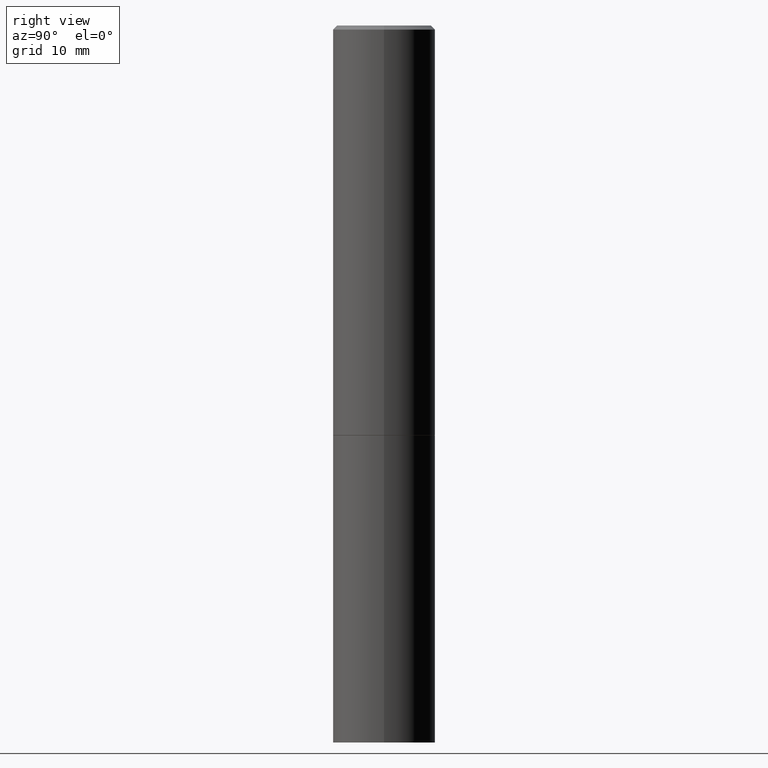
[diagram: clean part render]
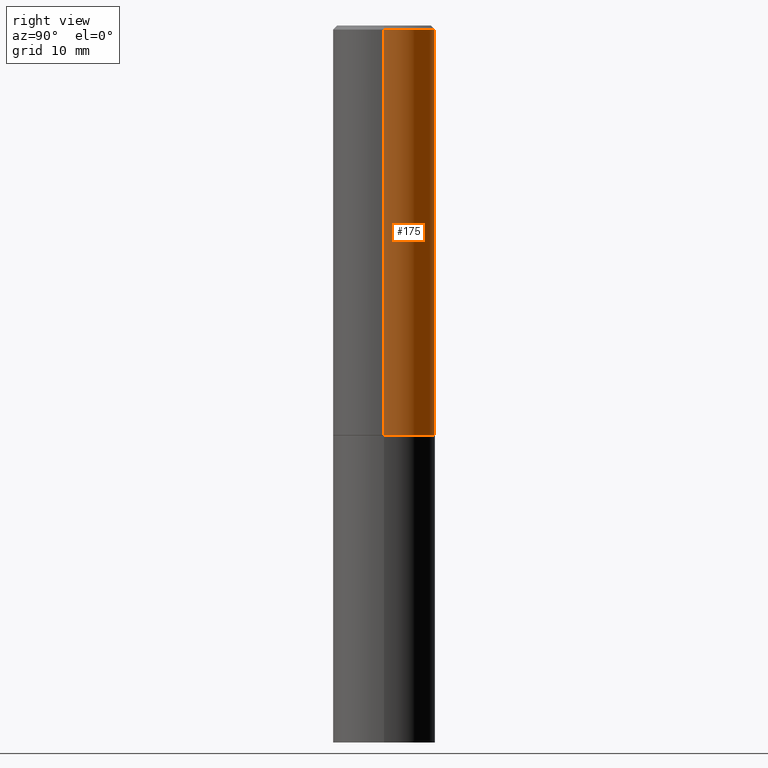
[diagram: same view with one face highlighted and labeled with its STEP entity id]
A machine part, right view. The second image highlights one B-rep face of the part: STEP entity #175.
In plain terms, the highlighted cylindrical surface (partial cylindrical patch) has radius 6.35 mm, axis along (-0, 0, 1).
Its self-contained STEP definition (entity closure, byte-faithful):
#2 = AXIS2_PLACEMENT_3D ( 'NONE', #123, #240, #359 ) ;
#12 = CARTESIAN_POINT ( 'NONE',  ( -0.2500000000000000000, -1.748293572161903489E-15, -1.998999999999999888 ) ) ;
#41 = CARTESIAN_POINT ( 'NONE',  ( 0.000000000000000000, 0.000000000000000000, 0.000000000000000000 ) ) ;
#45 = AXIS2_PLACEMENT_3D ( 'NONE', #41, #92, #155 ) ;
#57 = VERTEX_POINT ( 'NONE', #313 ) ;
#69 = VERTEX_POINT ( 'NONE', #152 ) ;
#74 = FACE_OUTER_BOUND ( 'NONE', #261, .T. ) ;
#76 = DIRECTION ( 'NONE',  ( -2.445468806185136877E-29, 3.491481338843145188E-15, 1.000000000000000000 ) ) ;
#84 = EDGE_CURVE ( 'NONE', #57, #146, #257, .T. ) ;
#92 = DIRECTION ( 'NONE',  ( -2.445468806185136597E-29, 3.491481338843145583E-15, 1.000000000000000000 ) ) ;
#105 = CARTESIAN_POINT ( 'NONE',  ( 0.2499999999999998890, -1.745740669421565889E-15, 1.219044193948983388E-29 ) ) ;
#114 = LINE ( 'NONE', #340, #292 ) ;
#117 = ORIENTED_EDGE ( 'NONE', *, *, #136, .T. ) ;
#123 = CARTESIAN_POINT ( 'NONE',  ( 4.888492143564087591E-29, -6.979471196347447369E-15, -1.998999999999999888 ) ) ;
#126 = VECTOR ( 'NONE', #193, 39.37007874015748143 ) ;
#132 = CIRCLE ( 'NONE', #2, 0.2500000000000000000 ) ;
#136 = EDGE_CURVE ( 'NONE', #69, #286, #132, .T. ) ;
#139 = ORIENTED_EDGE ( 'NONE', *, *, #321, .T. ) ;
#145 = ORIENTED_EDGE ( 'NONE', *, *, #84, .F. ) ;
#146 = VERTEX_POINT ( 'NONE', #295 ) ;
#152 = CARTESIAN_POINT ( 'NONE',  ( 0.2500000000000000000, -8.725211865769014047E-15, -1.998999999999999888 ) ) ;
#155 = DIRECTION ( 'NONE',  ( 1.000000000000000000, -6.982962677686266711E-15, 4.876176775795935793E-29 ) ) ;
#175 = ADVANCED_FACE ( 'NONE', ( #74 ), #329, .T. ) ;
#193 = DIRECTION ( 'NONE',  ( -2.445468806185136877E-29, 3.491481338843145188E-15, 1.000000000000000000 ) ) ;
#237 = DIRECTION ( 'NONE',  ( 1.000000000000000000, -6.982962677686266711E-15, 0.000000000000000000 ) ) ;
#240 = DIRECTION ( 'NONE',  ( -2.445468806185136597E-29, 3.491481338843145583E-15, 1.000000000000000000 ) ) ;
#255 = DIRECTION ( 'NONE',  ( -2.445468806185136597E-29, 3.491481338843145583E-15, 1.000000000000000000 ) ) ;
#257 = CIRCLE ( 'NONE', #308, 0.2499999999999998057 ) ;
#261 = EDGE_LOOP ( 'NONE', ( #117, #139, #145, #268 ) ) ;
#267 = CARTESIAN_POINT ( 'NONE',  ( 4.890937612370287172E-31, -6.982962677686310098E-17, -0.02000000000000005593 ) ) ;
#268 = ORIENTED_EDGE ( 'NONE', *, *, #357, .F. ) ;
#286 = VERTEX_POINT ( 'NONE', #12 ) ;
#292 = VECTOR ( 'NONE', #76, 39.37007874015748143 ) ;
#295 = CARTESIAN_POINT ( 'NONE',  ( -0.2499999999999998057, 1.675911042644702196E-15, -0.02000000000000005593 ) ) ;
#308 = AXIS2_PLACEMENT_3D ( 'NONE', #267, #255, #237 ) ;
#313 = CARTESIAN_POINT ( 'NONE',  ( 0.2499999999999998057, -1.784954126219744611E-15, -0.02000000000000005593 ) ) ;
#321 = EDGE_CURVE ( 'NONE', #286, #146, #114, .T. ) ;
#329 = CYLINDRICAL_SURFACE ( 'NONE', #45, 0.2499999999999998890 ) ;
#340 = CARTESIAN_POINT ( 'NONE',  ( -0.2499999999999998890, 1.776356839400249676E-15, -1.229733772563726025E-29 ) ) ;
#357 = EDGE_CURVE ( 'NONE', #69, #57, #363, .T. ) ;
#359 = DIRECTION ( 'NONE',  ( 1.000000000000000000, -6.982962677686266711E-15, 0.000000000000000000 ) ) ;
#363 = LINE ( 'NONE', #105, #126 ) ;